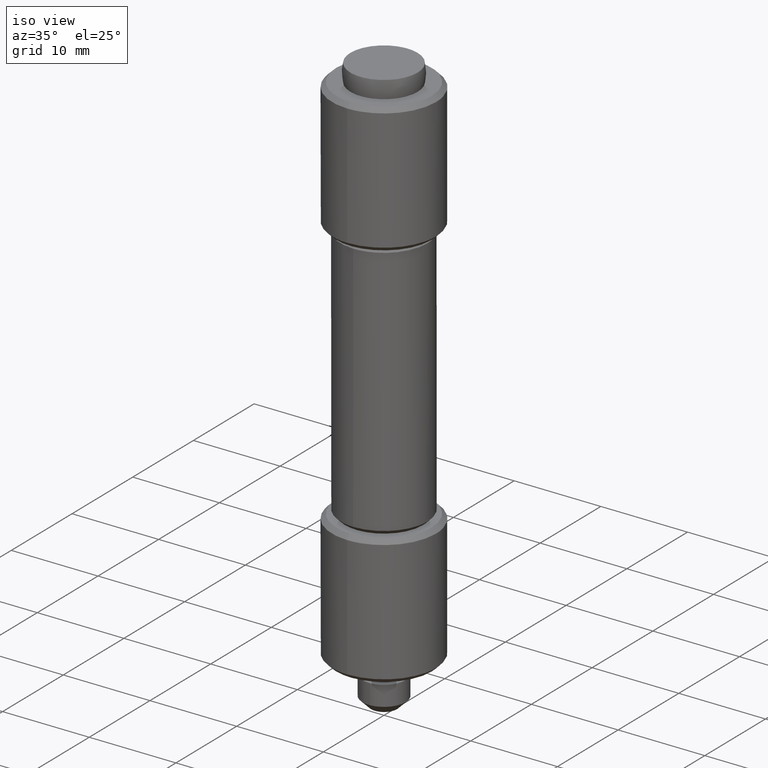
[diagram: clean part render]
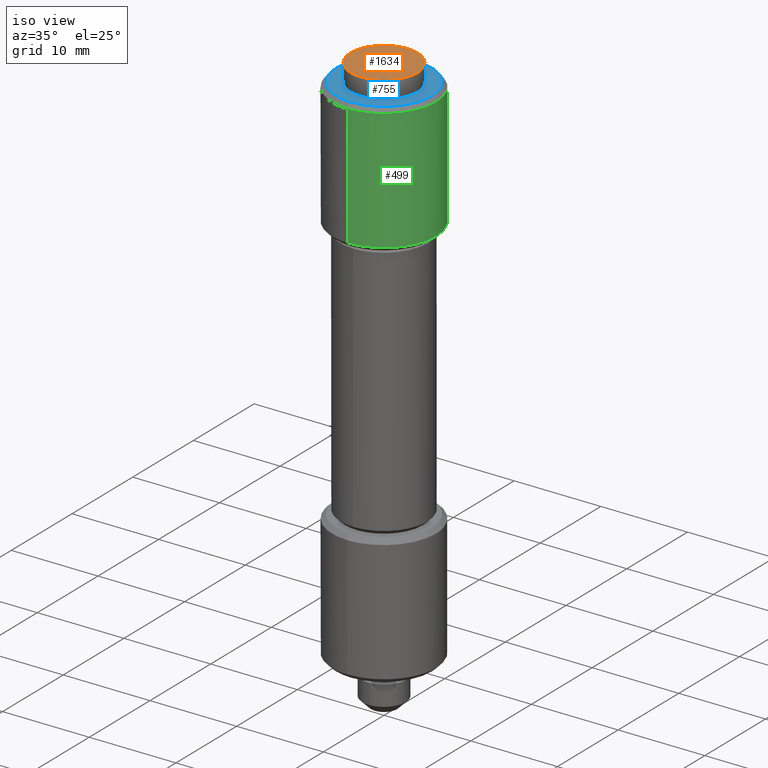
[diagram: same view with three faces highlighted in distinct colors, each labeled with its STEP entity id]
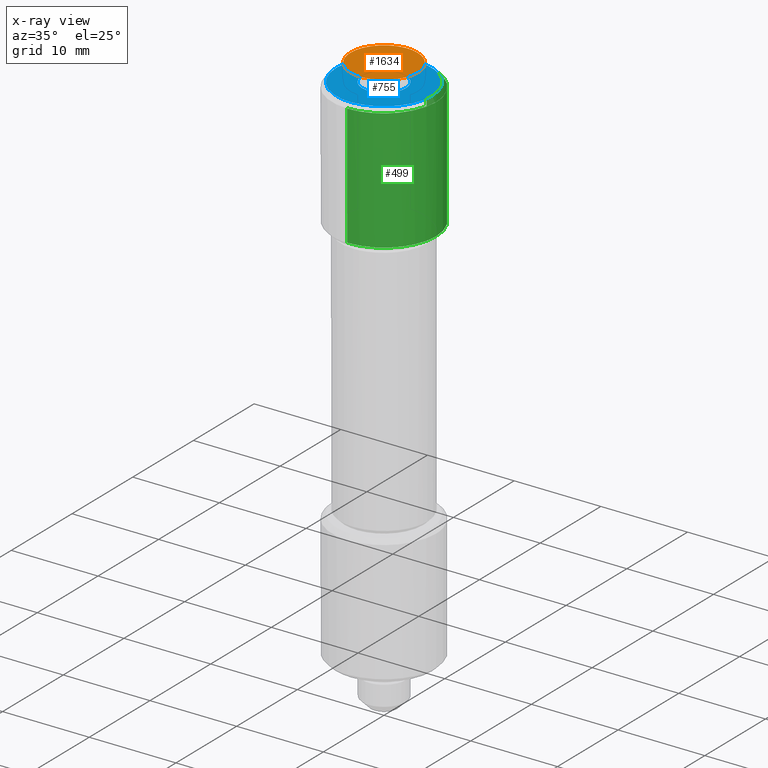
[diagram: x-ray of the same camera — body ghosted, the three highlighted faces saturated]
A machine part, iso view with three faces highlighted in distinct colors.
The next image is the same camera in x-ray (body ghosted, the three faces saturated) — at least one of them is partly hidden behind the body in this view.
Their STEP definitions:

[orange] entity #1634 — the highlighted face is a freeform B-spline surface patch.
#1593=CARTESIAN_POINT('',(-4.259892959500387,-4.259892959500326,67.0));
#1594=CARTESIAN_POINT('',(4.259893098009016,-4.259892959500326,67.0));
#1595=CARTESIAN_POINT('',(-4.259892959500386,4.259893098008956,67.0));
#1596=CARTESIAN_POINT('',(4.259893098009016,4.259893098008956,67.0));
#1597=B_SPLINE_SURFACE_WITH_KNOTS('',1,1,((#1593,#1595),(#1594,#1596)),.UNSPECIFIED.,.F.,.F.,.U.,(2,2),(2,2),(0.0,8.519786057509403),(0.0,8.519786057509283),.UNSPECIFIED.);
#1598=CARTESIAN_POINT('',(3.872982000000000,0.0,67.0));
#1599=VERTEX_POINT('',#1598);
#1600=CARTESIAN_POINT('',(-3.872982000000000,0.0,67.0));
#1601=VERTEX_POINT('',#1600);
#1602=CARTESIAN_POINT('',(3.872982000000000,0.0,67.0));
#1603=CARTESIAN_POINT('',(3.872981999999999,-3.872981999999999,67.0));
#1604=CARTESIAN_POINT('',(0.0,-3.872982000000000,67.0));
#1605=CARTESIAN_POINT('',(-3.872981999999999,-3.872981999999999,67.0));
#1606=CARTESIAN_POINT('',(-3.872982000000000,0.0,67.0));
#1614=(BOUNDED_CURVE()B_SPLINE_CURVE(2,(#1602,#1603,#1604,#1605,#1606),.UNSPECIFIED.,.F.,.U.)B_SPLINE_CURVE_WITH_KNOTS((3,2,3),(0.500000000000000,0.750000000000000,1.0),.UNSPECIFIED.)CURVE()GEOMETRIC_REPRESENTATION_ITEM()RATIONAL_B_SPLINE_CURVE((1.0,0.707106781186548,1.0,0.707106781186548,1.0))REPRESENTATION_ITEM(''));
#1615=EDGE_CURVE('',#1599,#1601,#1614,.T.);
#1616=ORIENTED_EDGE('',*,*,#1615,.F.);
#1617=CARTESIAN_POINT('',(-3.872982000000000,0.0,67.0));
#1618=CARTESIAN_POINT('',(-3.872981999999999,3.872981999999999,67.0));
#1619=CARTESIAN_POINT('',(0.0,3.872982000000000,67.0));
#1620=CARTESIAN_POINT('',(3.872981999999999,3.872981999999999,67.0));
#1621=CARTESIAN_POINT('',(3.872982000000000,0.0,67.0));
#1629=(BOUNDED_CURVE()B_SPLINE_CURVE(2,(#1617,#1618,#1619,#1620,#1621),.UNSPECIFIED.,.F.,.U.)B_SPLINE_CURVE_WITH_KNOTS((3,2,3),(0.0,0.250000000000000,0.500000000000000),.UNSPECIFIED.)CURVE()GEOMETRIC_REPRESENTATION_ITEM()RATIONAL_B_SPLINE_CURVE((1.0,0.707106781186548,1.0,0.707106781186548,1.0))REPRESENTATION_ITEM(''));
#1630=EDGE_CURVE('',#1601,#1599,#1629,.T.);
#1631=ORIENTED_EDGE('',*,*,#1630,.F.);
#1632=EDGE_LOOP('',(#1616,#1631));
#1633=FACE_OUTER_BOUND('',#1632,.T.);
#1634=ADVANCED_FACE('',(#1633),#1597,.T.);

[blue] entity #755 — the highlighted face is a freeform B-spline surface patch.
#85=CARTESIAN_POINT('',(-2.223184875934841,5.030650952651774,19.999999999999879));
#86=VERTEX_POINT('',#85);
#92=CARTESIAN_POINT('',(5.500000000000000,0.0,20.0));
#93=VERTEX_POINT('',#92);
#94=CARTESIAN_POINT('',(5.500000000000000,0.0,20.0));
#95=CARTESIAN_POINT('',(5.500000000000001,5.500000000000001,19.999999999999996));
#96=CARTESIAN_POINT('',(0.0,5.500000000000000,20.0));
#97=CARTESIAN_POINT('',(-1.161135894887036,5.499999999999999,20.000000000000004));
#98=CARTESIAN_POINT('',(-2.223184875934841,5.030650952651774,19.999999999999883));
#106=(BOUNDED_CURVE()B_SPLINE_CURVE(2,(#94,#95,#96,#97,#98),.UNSPECIFIED.,.F.,.U.)B_SPLINE_CURVE_WITH_KNOTS((3,2,3),(0.0,0.250000000000000,0.318638421540158),.UNSPECIFIED.)CURVE()GEOMETRIC_REPRESENTATION_ITEM()RATIONAL_B_SPLINE_CURVE((1.0,0.707106781186548,1.0,0.919585087123314,0.883326595751789))REPRESENTATION_ITEM(''));
#107=EDGE_CURVE('',#93,#86,#106,.T.);
#109=CARTESIAN_POINT('',(-0.047995945447204,-5.499790576879276,19.999999999971891));
#110=VERTEX_POINT('',#109);
#111=CARTESIAN_POINT('',(-0.047995945447204,-5.499790576879276,19.999999999971891));
#112=CARTESIAN_POINT('',(-0.023998429719772,-5.500000000000001,20.000000000000004));
#113=CARTESIAN_POINT('',(0.0,-5.500000000000000,20.0));
#114=CARTESIAN_POINT('',(5.500000000000001,-5.500000000000001,19.999999999999996));
#115=CARTESIAN_POINT('',(5.500000000000000,0.0,20.0));
#123=(BOUNDED_CURVE()B_SPLINE_CURVE(2,(#111,#112,#113,#114,#115),.UNSPECIFIED.,.F.,.U.)B_SPLINE_CURVE_WITH_KNOTS((3,2,3),(0.748460105651824,0.750000000000000,1.0),.UNSPECIFIED.)CURVE()GEOMETRIC_REPRESENTATION_ITEM()RATIONAL_B_SPLINE_CURVE((0.996414028069883,0.998195901550920,1.0,0.707106781186548,1.0))REPRESENTATION_ITEM(''));
#124=EDGE_CURVE('',#110,#93,#123,.T.);
#213=CARTESIAN_POINT('',(-5.500000000000000,0.0,20.0));
#214=VERTEX_POINT('',#213);
#215=CARTESIAN_POINT('',(-5.500000000000000,0.0,20.0));
#216=CARTESIAN_POINT('',(-5.500000000000001,-5.452211657864133,20.000000000000007));
#217=CARTESIAN_POINT('',(-0.047995945447204,-5.499790576879276,19.999999999971894));
#225=(BOUNDED_CURVE()B_SPLINE_CURVE(2,(#215,#216,#217),.UNSPECIFIED.,.F.,.U.)B_SPLINE_CURVE_WITH_KNOTS((3,3),(0.500000000000000,0.748460105651824),.UNSPECIFIED.)CURVE()GEOMETRIC_REPRESENTATION_ITEM()RATIONAL_B_SPLINE_CURVE((1.0,0.708910879635627,0.996414028069884))REPRESENTATION_ITEM(''));
#226=EDGE_CURVE('',#214,#110,#225,.T.);
#228=CARTESIAN_POINT('',(-2.223184875934841,5.030650952651774,19.999999999999879));
#229=CARTESIAN_POINT('',(-5.500000000000000,3.582535014251653,20.000000000000007));
#230=CARTESIAN_POINT('',(-5.500000000000000,0.0,20.0));
#238=(BOUNDED_CURVE()B_SPLINE_CURVE(2,(#228,#229,#230),.UNSPECIFIED.,.F.,.U.)B_SPLINE_CURVE_WITH_KNOTS((3,3),(0.318638421540158,0.500000000000000),.UNSPECIFIED.)CURVE()GEOMETRIC_REPRESENTATION_ITEM()RATIONAL_B_SPLINE_CURVE((0.883326595751789,0.787521694063233,1.0))REPRESENTATION_ITEM(''));
#239=EDGE_CURVE('',#86,#214,#238,.T.);
#590=CARTESIAN_POINT('',(-0.152621348974491,2.495336996046266,20.0));
#591=VERTEX_POINT('',#590);
#597=CARTESIAN_POINT('',(-2.500000000000000,0.0,20.0));
#598=VERTEX_POINT('',#597);
#599=CARTESIAN_POINT('',(-2.500000000000000,0.0,20.0));
#600=CARTESIAN_POINT('',(-2.500000000000000,2.351765167004858,19.999999999999993));
#601=CARTESIAN_POINT('',(-0.152621348974491,2.495336996046266,20.0));
#609=(BOUNDED_CURVE()B_SPLINE_CURVE(2,(#599,#600,#601),.UNSPECIFIED.,.F.,.U.)B_SPLINE_CURVE_WITH_KNOTS((3,3),(0.500000000000000,0.739332962222973),.UNSPECIFIED.)CURVE()GEOMETRIC_REPRESENTATION_ITEM()RATIONAL_B_SPLINE_CURVE((1.0,0.719603993305420,0.976072041632492))REPRESENTATION_ITEM(''));
#610=EDGE_CURVE('',#598,#591,#609,.T.);
#612=CARTESIAN_POINT('',(0.295085586764168,-2.482523815894632,20.0));
#613=VERTEX_POINT('',#612);
#614=CARTESIAN_POINT('',(0.295085586764168,-2.482523815894632,20.000000000000004));
#615=CARTESIAN_POINT('',(0.148060299253339,-2.500000000000000,20.000000000000004));
#616=CARTESIAN_POINT('',(0.0,-2.500000000000000,20.0));
#617=CARTESIAN_POINT('',(-2.500000000000000,-2.500000000000000,19.999999999999996));
#618=CARTESIAN_POINT('',(-2.500000000000000,0.0,20.0));
#626=(BOUNDED_CURVE()B_SPLINE_CURVE(2,(#614,#615,#616,#617,#618),.UNSPECIFIED.,.F.,.U.)B_SPLINE_CURVE_WITH_KNOTS((3,2,3),(0.229562473498996,0.250000000000000,0.500000000000000),.UNSPECIFIED.)CURVE()GEOMETRIC_REPRESENTATION_ITEM()RATIONAL_B_SPLINE_CURVE((0.956026754155255,0.976055948314143,1.0,0.707106781186548,1.0))REPRESENTATION_ITEM(''));
#627=EDGE_CURVE('',#613,#598,#626,.T.);
#671=CARTESIAN_POINT('',(2.500000000000000,0.0,20.0));
#672=VERTEX_POINT('',#671);
#673=CARTESIAN_POINT('',(2.500000000000000,0.0,20.0));
#674=CARTESIAN_POINT('',(2.499999999999999,-2.220436314658154,19.999999999999993));
#675=CARTESIAN_POINT('',(0.295085586764168,-2.482523815894632,20.000000000000004));
#683=(BOUNDED_CURVE()B_SPLINE_CURVE(2,(#673,#674,#675),.UNSPECIFIED.,.F.,.U.)B_SPLINE_CURVE_WITH_KNOTS((3,3),(0.0,0.229562473498997),.UNSPECIFIED.)CURVE()GEOMETRIC_REPRESENTATION_ITEM()RATIONAL_B_SPLINE_CURVE((1.0,0.731050832872404,0.956026754155255))REPRESENTATION_ITEM(''));
#684=EDGE_CURVE('',#672,#613,#683,.T.);
#686=CARTESIAN_POINT('',(-0.152621348974491,2.495336996046266,20.0));
#687=CARTESIAN_POINT('',(-0.076381908384206,2.500000000000000,20.000000000000004));
#688=CARTESIAN_POINT('',(0.0,2.500000000000000,20.0));
#689=CARTESIAN_POINT('',(2.500000000000000,2.500000000000000,19.999999999999996));
#690=CARTESIAN_POINT('',(2.500000000000000,0.0,20.0));
#698=(BOUNDED_CURVE()B_SPLINE_CURVE(2,(#686,#687,#688,#689,#690),.UNSPECIFIED.,.F.,.U.)B_SPLINE_CURVE_WITH_KNOTS((3,2,3),(0.739332962222974,0.750000000000000,1.0),.UNSPECIFIED.)CURVE()GEOMETRIC_REPRESENTATION_ITEM()RATIONAL_B_SPLINE_CURVE((0.976072041632493,0.987502787881128,1.0,0.707106781186548,1.0))REPRESENTATION_ITEM(''));
#699=EDGE_CURVE('',#591,#672,#698,.T.);
#738=CARTESIAN_POINT('',(-6.049449978679865,-6.049181981059634,20.0));
#739=CARTESIAN_POINT('',(6.049450273722857,-6.049181981059635,20.0));
#740=CARTESIAN_POINT('',(-6.049449978679865,6.048425392481411,20.0));
#741=CARTESIAN_POINT('',(6.049450273722857,6.048425392481412,20.0));
#742=B_SPLINE_SURFACE_WITH_KNOTS('',1,1,((#738,#740),(#739,#741)),.UNSPECIFIED.,.F.,.F.,.U.,(2,2),(2,2),(0.0,12.098900252402720),(0.0,12.097607373541051),.UNSPECIFIED.);
#743=ORIENTED_EDGE('',*,*,#107,.T.);
#744=ORIENTED_EDGE('',*,*,#239,.T.);
#745=ORIENTED_EDGE('',*,*,#226,.T.);
#746=ORIENTED_EDGE('',*,*,#124,.T.);
#747=EDGE_LOOP('',(#743,#744,#745,#746));
#748=FACE_OUTER_BOUND('',#747,.T.);
#749=ORIENTED_EDGE('',*,*,#610,.T.);
#750=ORIENTED_EDGE('',*,*,#699,.T.);
#751=ORIENTED_EDGE('',*,*,#684,.T.);
#752=ORIENTED_EDGE('',*,*,#627,.T.);
#753=EDGE_LOOP('',(#749,#750,#751,#752));
#754=FACE_BOUND('',#753,.T.);
#755=ADVANCED_FACE('',(#748,#754),#742,.T.);

[green] entity #499 — the highlighted face is a freeform B-spline surface patch.
#68=CARTESIAN_POINT('',(0.744758561494347,5.953598465213299,19.500000000000000));
#69=VERTEX_POINT('',#68);
#126=CARTESIAN_POINT('',(-0.052359213022021,-5.999771538384714,19.500000000000039));
#127=VERTEX_POINT('',#126);
#133=CARTESIAN_POINT('',(6.0,0.0,19.500000000000000));
#134=VERTEX_POINT('',#133);
#135=CARTESIAN_POINT('',(6.0,0.0,19.500000000000000));
#136=CARTESIAN_POINT('',(6.0,-6.0,19.500000000000004));
#137=CARTESIAN_POINT('',(0.0,-6.0,19.500000000000000));
#138=CARTESIAN_POINT('',(-0.026180104987775,-6.0,19.499999999999996));
#139=CARTESIAN_POINT('',(-0.052359213022021,-5.999771538384714,19.500000000000032));
#147=(BOUNDED_CURVE()B_SPLINE_CURVE(2,(#135,#136,#137,#138,#139),.UNSPECIFIED.,.F.,.U.)B_SPLINE_CURVE_WITH_KNOTS((3,2,3),(0.500000000000000,0.750000000000000,0.751539894338719),.UNSPECIFIED.)CURVE()GEOMETRIC_REPRESENTATION_ITEM()RATIONAL_B_SPLINE_CURVE((1.0,0.707106781186548,1.0,0.998195901562000,0.996414028091769))REPRESENTATION_ITEM(''));
#148=EDGE_CURVE('',#134,#127,#147,.T.);
#150=CARTESIAN_POINT('',(0.744758561494347,5.953598465213299,19.500000000000004));
#151=CARTESIAN_POINT('',(6.0,5.296200073825249,19.500000000000000));
#152=CARTESIAN_POINT('',(6.0,0.0,19.500000000000000));
#160=(BOUNDED_CURVE()B_SPLINE_CURVE(2,(#150,#151,#152),.UNSPECIFIED.,.F.,.U.)B_SPLINE_CURVE_WITH_KNOTS((3,3),(0.271473661255216,0.500000000000000),.UNSPECIFIED.)CURVE()GEOMETRIC_REPRESENTATION_ITEM()RATIONAL_B_SPLINE_CURVE((0.954005949807644,0.732264740245548,1.0))REPRESENTATION_ITEM(''));
#161=EDGE_CURVE('',#69,#134,#160,.T.);
#351=CARTESIAN_POINT('',(0.744768012531684,5.953597282946639,5.500000000000000));
#352=VERTEX_POINT('',#351);
#368=CARTESIAN_POINT('',(6.0,0.0,5.500000000000000));
#369=VERTEX_POINT('',#368);
#370=CARTESIAN_POINT('',(6.0,0.0,5.500000000000000));
#371=CARTESIAN_POINT('',(6.000000000000003,5.296191600806900,5.500000000000000));
#372=CARTESIAN_POINT('',(0.744768012531684,5.953597282946640,5.500000000000001));
#380=(BOUNDED_CURVE()B_SPLINE_CURVE(2,(#370,#371,#372),.UNSPECIFIED.,.F.,.U.)B_SPLINE_CURVE_WITH_KNOTS((3,3),(0.500000000000000,0.728526071026314),.UNSPECIFIED.)CURVE()GEOMETRIC_REPRESENTATION_ITEM()RATIONAL_B_SPLINE_CURVE((1.0,0.732265053897245,0.954005430268926))REPRESENTATION_ITEM(''));
#381=EDGE_CURVE('',#369,#352,#380,.T.);
#383=CARTESIAN_POINT('',(-0.052359213044773,-5.999771538384551,5.500000000000000));
#384=VERTEX_POINT('',#383);
#385=CARTESIAN_POINT('',(-0.052359213044773,-5.999771538384551,5.500000000000001));
#386=CARTESIAN_POINT('',(-0.026180104978742,-6.0,5.500000000000000));
#387=CARTESIAN_POINT('',(0.0,-6.0,5.500000000000000));
#388=CARTESIAN_POINT('',(6.0,-6.0,5.500000000000001));
#389=CARTESIAN_POINT('',(6.0,0.0,5.500000000000000));
#397=(BOUNDED_CURVE()B_SPLINE_CURVE(2,(#385,#386,#387,#388,#389),.UNSPECIFIED.,.F.,.U.)B_SPLINE_CURVE_WITH_KNOTS((3,2,3),(0.248460105661811,0.250000000000000,0.500000000000000),.UNSPECIFIED.)CURVE()GEOMETRIC_REPRESENTATION_ITEM()RATIONAL_B_SPLINE_CURVE((0.996414028092996,0.998195901562621,1.0,0.707106781186548,1.0))REPRESENTATION_ITEM(''));
#398=EDGE_CURVE('',#384,#369,#397,.T.);
#461=CARTESIAN_POINT('',(0.660702988506187,5.964113436103609,19.850000000000005));
#462=CARTESIAN_POINT('',(0.702631995100168,5.958868307583474,19.849999999999998));
#463=CARTESIAN_POINT('',(6.046396983014668,5.290387548799326,19.850000000000009));
#464=CARTESIAN_POINT('',(5.999771538385026,-0.052359212990243,19.850000000000009));
#465=CARTESIAN_POINT('',(5.947412325394783,-6.052130751375269,19.850000000000001));
#466=CARTESIAN_POINT('',(-0.092972838205489,-5.999417108647267,19.850000000000005));
#467=CARTESIAN_POINT('',(-0.133359347750879,-5.999064660917934,19.850000000000001));
#468=CARTESIAN_POINT('',(0.660702988506187,5.964113436103609,5.141250000000000));
#469=CARTESIAN_POINT('',(0.702631995100168,5.958868307583474,5.141249999999999));
#470=CARTESIAN_POINT('',(6.046396983014668,5.290387548799326,5.141250000000000));
#471=CARTESIAN_POINT('',(5.999771538385026,-0.052359212990243,5.141249999999999));
#472=CARTESIAN_POINT('',(5.947412325394783,-6.052130751375269,5.141249999999999));
#473=CARTESIAN_POINT('',(-0.092972838205489,-5.999417108647267,5.141249999999998));
#474=CARTESIAN_POINT('',(-0.133359347750879,-5.999064660917934,5.141249999999998));
#482=(BOUNDED_SURFACE()B_SPLINE_SURFACE(2,1,((#461,#468),(#462,#469),(#463,#470),(#464,#471),(#465,#472),(#466,#473),(#467,#474)),.UNSPECIFIED.,.F.,.F.,.U.)B_SPLINE_SURFACE_WITH_KNOTS((3,1,2,1,3),(2,2),(0.0,0.095445533741956,9.241280990939892,19.182406487894170,19.277841343984541),(0.0,14.708750000000011),.UNSPECIFIED.)GEOMETRIC_REPRESENTATION_ITEM()RATIONAL_B_SPLINE_SURFACE(((0.961610431080663,0.961610431080663),(0.959248274635662,0.959248274635662),(0.730538238691624,0.730538238691624),(1.0,1.0),(0.707106781186548,0.707106781186548),(1.002811776412628,1.002811776412628),(1.005623552825256,1.005623552825256)))REPRESENTATION_ITEM('')SURFACE());
#483=ORIENTED_EDGE('',*,*,#161,.T.);
#484=ORIENTED_EDGE('',*,*,#148,.T.);
#485=CARTESIAN_POINT('',(-0.052359213022021,-5.999771538384714,19.500000000000039));
#486=CARTESIAN_POINT('',(-0.052359213044773,-5.999771538384551,5.500000000000000));
#487=QUASI_UNIFORM_CURVE('',1,(#485,#486),.UNSPECIFIED.,.F.,.U.);
#488=EDGE_CURVE('',#127,#384,#487,.T.);
#489=ORIENTED_EDGE('',*,*,#488,.T.);
#490=ORIENTED_EDGE('',*,*,#398,.T.);
#491=ORIENTED_EDGE('',*,*,#381,.T.);
#492=CARTESIAN_POINT('',(0.744758561494347,5.953598465213299,19.500000000000000));
#493=CARTESIAN_POINT('',(0.744768012531684,5.953597282946639,5.500000000000000));
#494=QUASI_UNIFORM_CURVE('',1,(#492,#493),.UNSPECIFIED.,.F.,.U.);
#495=EDGE_CURVE('',#69,#352,#494,.T.);
#496=ORIENTED_EDGE('',*,*,#495,.F.);
#497=EDGE_LOOP('',(#483,#484,#489,#490,#491,#496));
#498=FACE_OUTER_BOUND('',#497,.T.);
#499=ADVANCED_FACE('',(#498),#482,.T.);